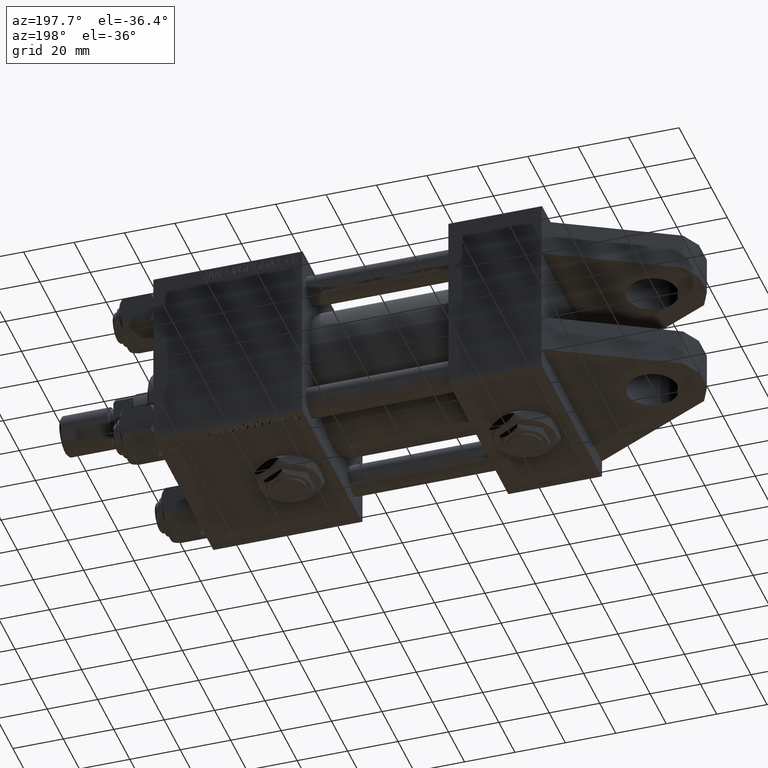
[diagram: clean part render]
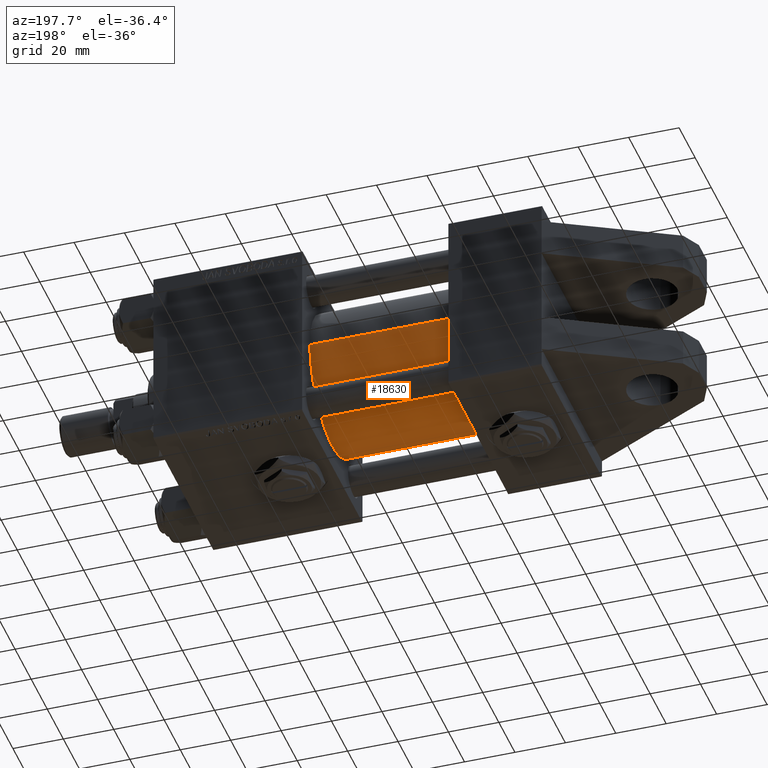
[diagram: same view with one face highlighted and labeled with its STEP entity id]
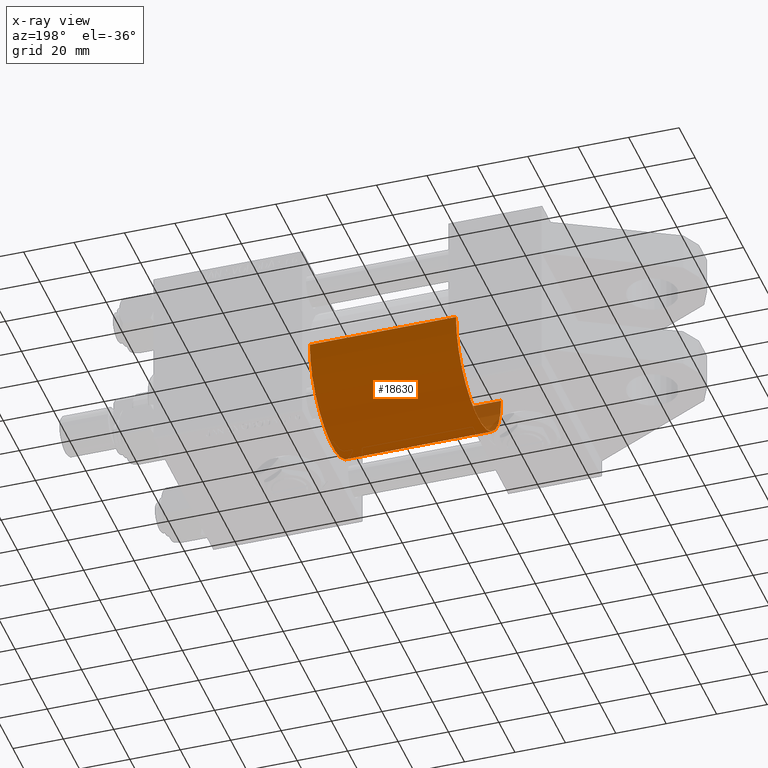
[diagram: x-ray of the same camera — body ghosted, the highlighted face saturated]
A machine part, auxiliary view. The second image highlights one B-rep face of the part: STEP entity #18630.
The next image is the same camera in x-ray: the body ghosted, the highlighted face saturated — about 3% of this face is hidden behind the body in this view.
In plain terms, the highlighted cylindrical surface (partial cylindrical patch) has radius 28 mm, axis along (-1, -0, 0).
Its self-contained STEP definition (entity closure, byte-faithful):
#673 = EDGE_CURVE ( 'NONE', #15718, #3795, #22191, .T. ) ;
#1432 = VECTOR ( 'NONE', #2708, 1000.000000000000000 ) ;
#2307 = LINE ( 'NONE', #15229, #28291 ) ;
#2708 = DIRECTION ( 'NONE',  ( -1.000000000000000000, -0.000000000000000000, -0.000000000000000000 ) ) ;
#3157 = VERTEX_POINT ( 'NONE', #34743 ) ;
#3795 = VERTEX_POINT ( 'NONE', #28867 ) ;
#4349 = CARTESIAN_POINT ( 'NONE',  ( 95.00000000000000000, -3.469446951953614189E-15, 0.000000000000000000 ) ) ;
#6926 = LINE ( 'NONE', #23296, #1432 ) ;
#7461 = EDGE_CURVE ( 'NONE', #43565, #3157, #27411, .T. ) ;
#8078 = ORIENTED_EDGE ( 'NONE', *, *, #13033, .F. ) ;
#8364 = AXIS2_PLACEMENT_3D ( 'NONE', #49356, #21928, #25375 ) ;
#10084 = EDGE_CURVE ( 'NONE', #43565, #15718, #2307, .T. ) ;
#12050 = ORIENTED_EDGE ( 'NONE', *, *, #7461, .F. ) ;
#13033 = EDGE_CURVE ( 'NONE', #3157, #3795, #6926, .T. ) ;
#14972 = DIRECTION ( 'NONE',  ( -1.000000000000000000, -0.000000000000000000, -0.000000000000000000 ) ) ;
#15229 = CARTESIAN_POINT ( 'NONE',  ( 95.00000000000000000, -4.043591434102586818E-17, -28.00000000000000000 ) ) ;
#15718 = VERTEX_POINT ( 'NONE', #25233 ) ;
#16035 = DIRECTION ( 'NONE',  ( 1.000000000000000000, -0.000000000000000000, 0.000000000000000000 ) ) ;
#18406 = ORIENTED_EDGE ( 'NONE', *, *, #10084, .T. ) ;
#18630 = ADVANCED_FACE ( 'NONE', ( #46443 ), #42223, .T. ) ;
#21928 = DIRECTION ( 'NONE',  ( -1.000000000000000000, -0.000000000000000000, -0.000000000000000000 ) ) ;
#22191 = CIRCLE ( 'NONE', #25551, 28.00000000000000000 ) ;
#23296 = CARTESIAN_POINT ( 'NONE',  ( 95.00000000000000000, -3.469446951953614189E-15, 28.00000000000000000 ) ) ;
#25233 = CARTESIAN_POINT ( 'NONE',  ( 37.00000000000000000, -4.043591434102586818E-17, -28.00000000000000000 ) ) ;
#25375 = DIRECTION ( 'NONE',  ( 0.000000000000000000, 0.000000000000000000, 1.000000000000000000 ) ) ;
#25551 = AXIS2_PLACEMENT_3D ( 'NONE', #43994, #16035, #32120 ) ;
#27411 = CIRCLE ( 'NONE', #29055, 28.00000000000000000 ) ;
#28291 = VECTOR ( 'NONE', #14972, 1000.000000000000000 ) ;
#28371 = DIRECTION ( 'NONE',  ( 1.000000000000000000, 0.000000000000000000, 0.000000000000000000 ) ) ;
#28867 = CARTESIAN_POINT ( 'NONE',  ( 37.00000000000000000, -3.469446951953614189E-15, 28.00000000000000000 ) ) ;
#29055 = AXIS2_PLACEMENT_3D ( 'NONE', #4349, #28371, #36535 ) ;
#31480 = ORIENTED_EDGE ( 'NONE', *, *, #673, .T. ) ;
#32120 = DIRECTION ( 'NONE',  ( 0.000000000000000000, 0.000000000000000000, 1.000000000000000000 ) ) ;
#32376 = EDGE_LOOP ( 'NONE', ( #12050, #18406, #31480, #8078 ) ) ;
#32857 = CARTESIAN_POINT ( 'NONE',  ( 95.00000000000000000, -4.043591434102586818E-17, -28.00000000000000000 ) ) ;
#34743 = CARTESIAN_POINT ( 'NONE',  ( 95.00000000000000000, -3.469446951953614189E-15, 28.00000000000000000 ) ) ;
#36535 = DIRECTION ( 'NONE',  ( 0.000000000000000000, 0.000000000000000000, -1.000000000000000000 ) ) ;
#42223 = CYLINDRICAL_SURFACE ( 'NONE', #8364, 28.00000000000000000 ) ;
#43565 = VERTEX_POINT ( 'NONE', #32857 ) ;
#43994 = CARTESIAN_POINT ( 'NONE',  ( 37.00000000000000000, -3.469446951953614189E-15, 0.000000000000000000 ) ) ;
#46443 = FACE_OUTER_BOUND ( 'NONE', #32376, .T. ) ;
#49356 = CARTESIAN_POINT ( 'NONE',  ( 95.00000000000000000, -3.469446951953614189E-15, 0.000000000000000000 ) ) ;